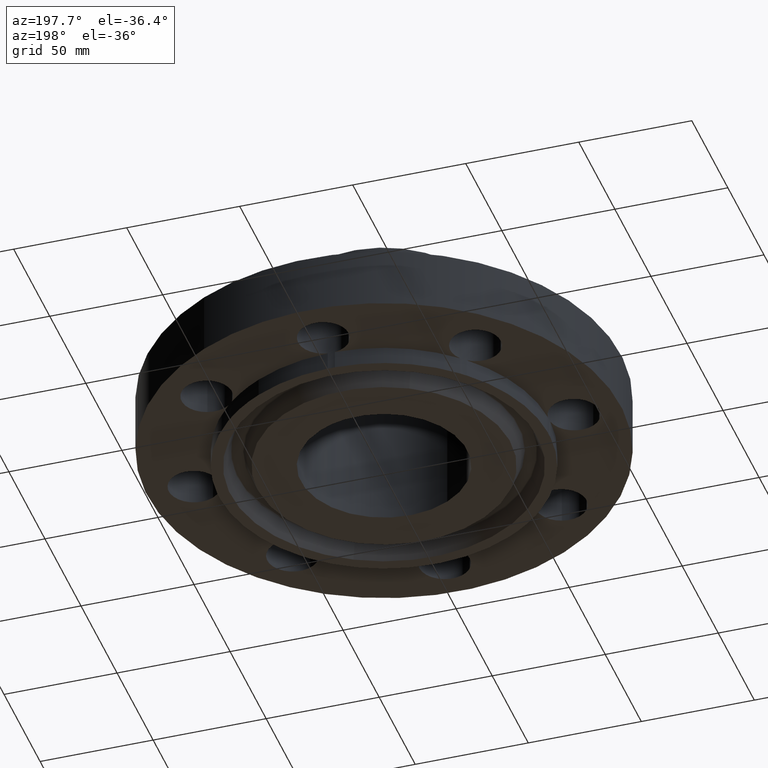
[diagram: clean part render]
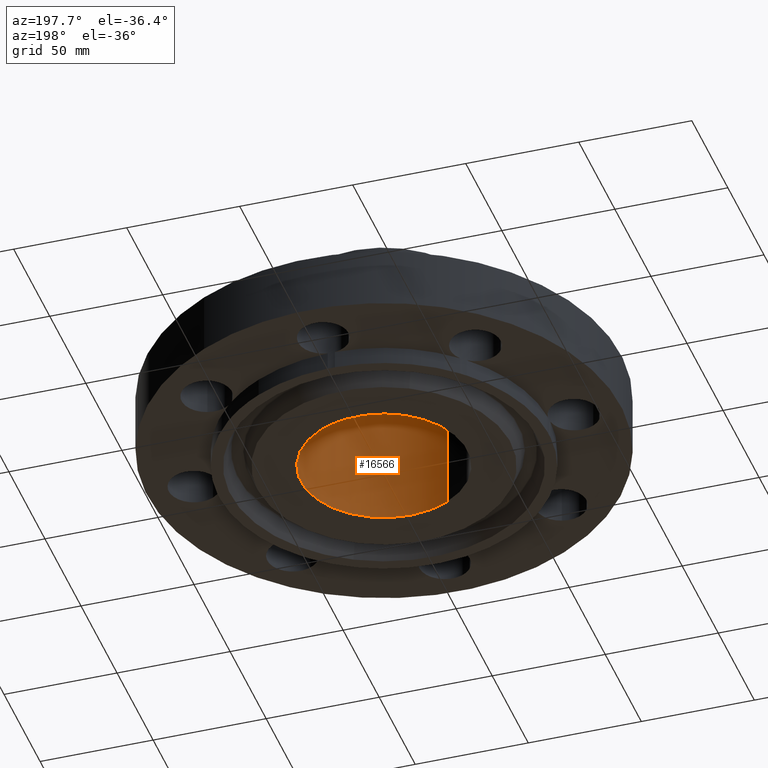
[diagram: same view with one face highlighted and labeled with its STEP entity id]
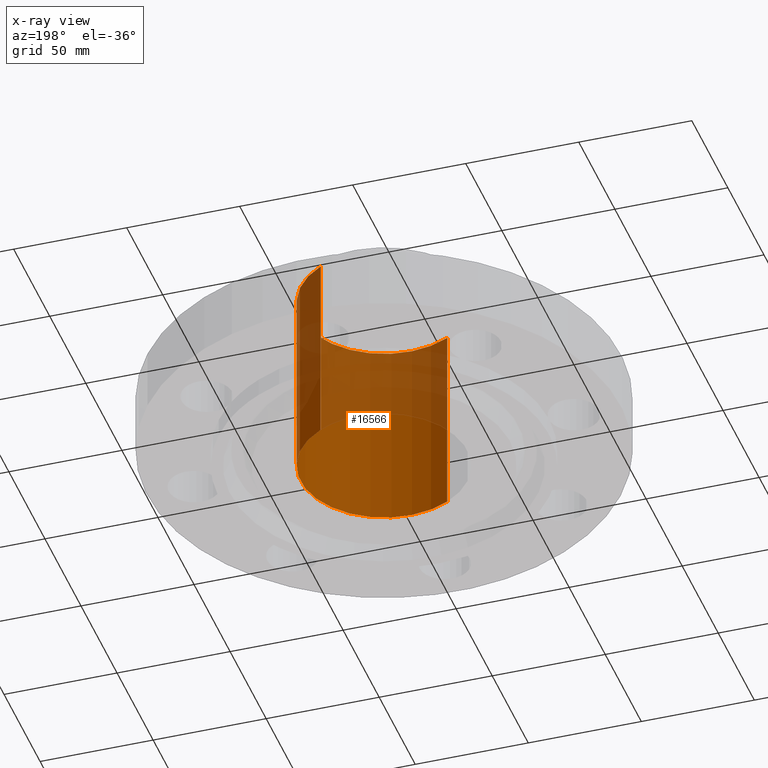
[diagram: x-ray of the same camera — body ghosted, the highlighted face saturated]
A machine part, auxiliary view. The second image highlights one B-rep face of the part: STEP entity #16566.
The next image is the same camera in x-ray: the body ghosted, the highlighted face saturated — about 46% of this face is hidden behind the body in this view.
In plain terms, the highlighted cylindrical surface (partial cylindrical patch) has radius 36.83 mm, axis along (0, 0, -1).
Its self-contained STEP definition (entity closure, byte-faithful):
#5675=AXIS2_PLACEMENT_3D('Circle Axis2P3D',#5673,#5674,$) ;
#16553=AXIS2_PLACEMENT_3D('Cylinder Axis2P3D',#16550,#16551,#16552) ;
#16557=AXIS2_PLACEMENT_3D('Circle Axis2P3D',#16555,#16556,$) ;
#5668=CARTESIAN_POINT('Vertex',(-0.695167030978,-1.27249471473,3.06000000001)) ;
#5670=CARTESIAN_POINT('Vertex',(0.695167030978,1.27249471473,3.06000000001)) ;
#5673=CARTESIAN_POINT('Axis2P3D Location',(4.36653687836E-011,-2.11873213637E-011,3.06000000001)) ;
#16505=CARTESIAN_POINT('Line Origine',(-0.695167030981,-1.27249471475,1.37349999999)) ;
#16509=CARTESIAN_POINT('Vertex',(-0.695167030978,-1.27249471476,-0.313000000001)) ;
#16528=CARTESIAN_POINT('Vertex',(0.695167030981,1.27249471475,-0.313000000031)) ;
#16531=CARTESIAN_POINT('Line Origine',(0.695167030981,1.27249471475,1.37349999999)) ;
#16550=CARTESIAN_POINT('Axis2P3D Location',(0.,0.,1.37350000001)) ;
#16555=CARTESIAN_POINT('Axis2P3D Location',(0.,0.,-0.313000000031)) ;
#5674=DIRECTION('Axis2P3D Direction',(0.,0.,-0.0393700787402)) ;
#16506=DIRECTION('Vector Direction',(0.,0.,-0.0393700787402)) ;
#16532=DIRECTION('Vector Direction',(0.,0.,-0.0393700787402)) ;
#16551=DIRECTION('Axis2P3D Direction',(0.,0.,-0.0393700787402)) ;
#16552=DIRECTION('Axis2P3D XDirection',(0.0188750212048,0.0345504945626,0.)) ;
#16556=DIRECTION('Axis2P3D Direction',(0.,0.,-0.0393700787402)) ;
#16507=VECTOR('Line Direction',#16506,0.0393700787402) ;
#16533=VECTOR('Line Direction',#16532,0.0393700787402) ;
#16561=ORIENTED_EDGE('',*,*,#5677,.F.) ;
#16562=ORIENTED_EDGE('',*,*,#16535,.T.) ;
#16563=ORIENTED_EDGE('',*,*,#16559,.T.) ;
#16564=ORIENTED_EDGE('',*,*,#16511,.F.) ;
#16566=ADVANCED_FACE('PartBody',(#16565),#16554,.F.) ;
#5676=CIRCLE('generated circle',#5675,1.44999999999) ;
#16558=CIRCLE('generated circle',#16557,1.45000000001) ;
#16554=CYLINDRICAL_SURFACE('generated cylinder',#16553,1.45000000001) ;
#5677=EDGE_CURVE('',#5671,#5669,#5676,.T.) ;
#16511=EDGE_CURVE('',#5669,#16510,#16508,.T.) ;
#16535=EDGE_CURVE('',#5671,#16529,#16534,.T.) ;
#16559=EDGE_CURVE('',#16529,#16510,#16558,.T.) ;
#16560=EDGE_LOOP('',(#16561,#16562,#16563,#16564)) ;
#16565=FACE_OUTER_BOUND('',#16560,.T.) ;
#16508=LINE('Line',#16505,#16507) ;
#16534=LINE('Line',#16531,#16533) ;
#5669=VERTEX_POINT('',#5668) ;
#5671=VERTEX_POINT('',#5670) ;
#16510=VERTEX_POINT('',#16509) ;
#16529=VERTEX_POINT('',#16528) ;